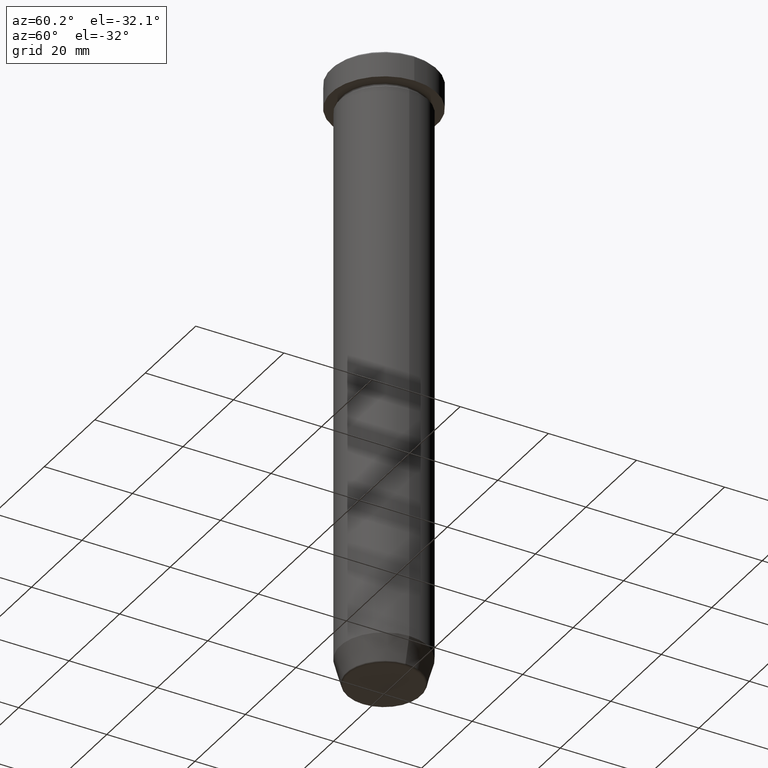
[diagram: clean part render]
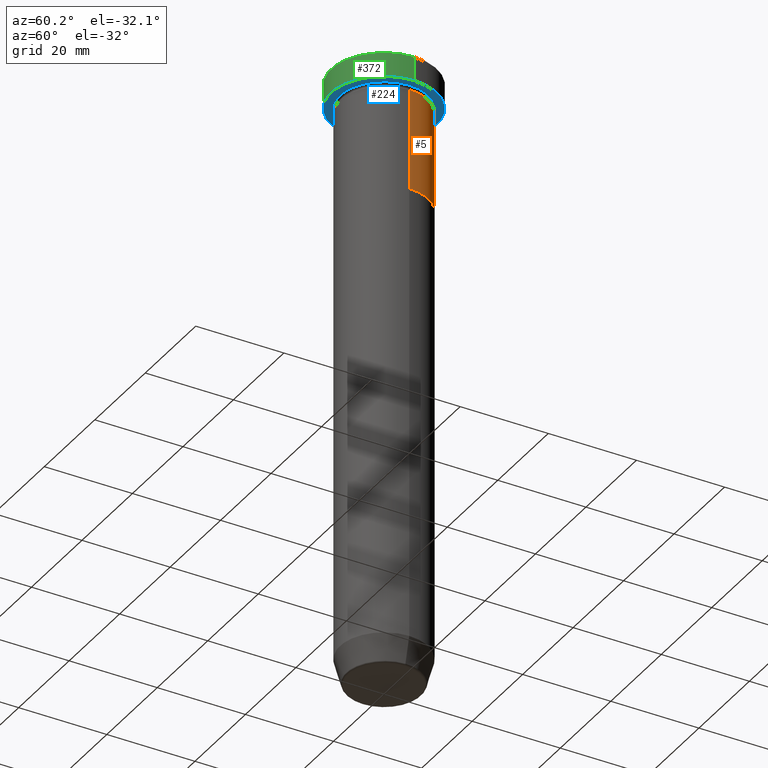
[diagram: same view with three faces highlighted in distinct colors, each labeled with its STEP entity id]
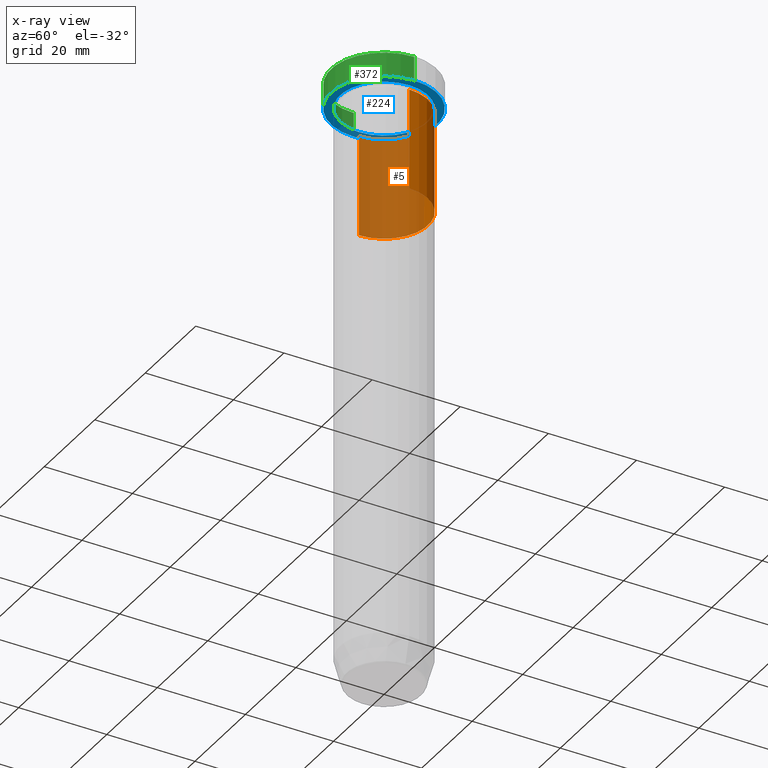
[diagram: x-ray of the same camera — body ghosted, the three highlighted faces saturated]
A machine part, auxiliary view with three faces highlighted in distinct colors.
The next image is the same camera in x-ray (body ghosted, the three faces saturated) — at least one of them is partly hidden behind the body in this view.
Their STEP definitions:

[orange] entity #5 — the highlighted cylindrical surface (partial cylindrical patch) has radius 10 mm, axis along (-0, -0, 1).
#5 = ADVANCED_FACE ( 'NONE', ( #566 ), #194, .T. ) ;
#13 = VERTEX_POINT ( 'NONE', #433 ) ;
#26 = VERTEX_POINT ( 'NONE', #547 ) ;
#64 = LINE ( 'NONE', #434, #79 ) ;
#66 = DIRECTION ( 'NONE',  ( -0.000000000000000000, -0.000000000000000000, 1.000000000000000000 ) ) ;
#67 = CARTESIAN_POINT ( 'NONE',  ( -10.00000000000000000, 1.224646799147353256E-15, -30.00000000000000000 ) ) ;
#70 = EDGE_CURVE ( 'NONE', #26, #389, #244, .T. ) ;
#79 = VECTOR ( 'NONE', #113, 1000.000000000000000 ) ;
#113 = DIRECTION ( 'NONE',  ( -0.000000000000000000, -0.000000000000000000, 1.000000000000000000 ) ) ;
#124 = ORIENTED_EDGE ( 'NONE', *, *, #70, .F. ) ;
#139 = AXIS2_PLACEMENT_3D ( 'NONE', #453, #66, #250 ) ;
#174 = EDGE_CURVE ( 'NONE', #13, #563, #186, .T. ) ;
#186 = CIRCLE ( 'NONE', #139, 10.00000000000000000 ) ;
#194 = CYLINDRICAL_SURFACE ( 'NONE', #471, 10.00000000000000000 ) ;
#196 = DIRECTION ( 'NONE',  ( 1.000000000000000000, 0.000000000000000000, 0.000000000000000000 ) ) ;
#244 = CIRCLE ( 'NONE', #287, 10.00000000000000000 ) ;
#245 = EDGE_LOOP ( 'NONE', ( #363, #406, #124, #343 ) ) ;
#250 = DIRECTION ( 'NONE',  ( 1.000000000000000000, 0.000000000000000000, 0.000000000000000000 ) ) ;
#260 = DIRECTION ( 'NONE',  ( -0.000000000000000000, -0.000000000000000000, 1.000000000000000000 ) ) ;
#287 = AXIS2_PLACEMENT_3D ( 'NONE', #430, #443, #535 ) ;
#312 = CARTESIAN_POINT ( 'NONE',  ( -10.00000000000000000, 1.224646799147353256E-15, -6.999999999999999112 ) ) ;
#343 = ORIENTED_EDGE ( 'NONE', *, *, #405, .F. ) ;
#363 = ORIENTED_EDGE ( 'NONE', *, *, #174, .T. ) ;
#382 = CARTESIAN_POINT ( 'NONE',  ( 0.000000000000000000, 0.000000000000000000, 0.000000000000000000 ) ) ;
#389 = VERTEX_POINT ( 'NONE', #312 ) ;
#399 = LINE ( 'NONE', #446, #409 ) ;
#405 = EDGE_CURVE ( 'NONE', #13, #26, #399, .T. ) ;
#406 = ORIENTED_EDGE ( 'NONE', *, *, #436, .T. ) ;
#409 = VECTOR ( 'NONE', #260, 1000.000000000000000 ) ;
#430 = CARTESIAN_POINT ( 'NONE',  ( 0.000000000000000000, 0.000000000000000000, -6.999999999999999112 ) ) ;
#433 = CARTESIAN_POINT ( 'NONE',  ( 10.00000000000000000, 0.000000000000000000, -30.00000000000000000 ) ) ;
#434 = CARTESIAN_POINT ( 'NONE',  ( -10.00000000000000000, 1.224646799147353256E-15, 0.000000000000000000 ) ) ;
#436 = EDGE_CURVE ( 'NONE', #563, #389, #64, .T. ) ;
#443 = DIRECTION ( 'NONE',  ( -0.000000000000000000, -0.000000000000000000, 1.000000000000000000 ) ) ;
#446 = CARTESIAN_POINT ( 'NONE',  ( 10.00000000000000000, 0.000000000000000000, 0.000000000000000000 ) ) ;
#453 = CARTESIAN_POINT ( 'NONE',  ( 0.000000000000000000, 0.000000000000000000, -30.00000000000000000 ) ) ;
#471 = AXIS2_PLACEMENT_3D ( 'NONE', #382, #525, #196 ) ;
#525 = DIRECTION ( 'NONE',  ( -0.000000000000000000, -0.000000000000000000, 1.000000000000000000 ) ) ;
#535 = DIRECTION ( 'NONE',  ( 1.000000000000000000, 0.000000000000000000, 0.000000000000000000 ) ) ;
#547 = CARTESIAN_POINT ( 'NONE',  ( 10.00000000000000000, 0.000000000000000000, -6.999999999999999112 ) ) ;
#563 = VERTEX_POINT ( 'NONE', #67 ) ;
#566 = FACE_OUTER_BOUND ( 'NONE', #245, .T. ) ;

[blue] entity #224 — the highlighted planar face has unit normal (0, 0, -1).
#18 = ORIENTED_EDGE ( 'NONE', *, *, #519, .T. ) ;
#50 = EDGE_CURVE ( 'NONE', #320, #52, #177, .T. ) ;
#52 = VERTEX_POINT ( 'NONE', #254 ) ;
#76 = PLANE ( 'NONE',  #438 ) ;
#142 = VERTEX_POINT ( 'NONE', #598 ) ;
#163 = FACE_BOUND ( 'NONE', #444, .T. ) ;
#177 = CIRCLE ( 'NONE', #401, 10.00000000000000000 ) ;
#184 = DIRECTION ( 'NONE',  ( 1.000000000000000000, 0.000000000000000000, 0.000000000000000000 ) ) ;
#220 = CARTESIAN_POINT ( 'NONE',  ( 0.000000000000000000, 12.00000000000000000, -6.000000000000000000 ) ) ;
#221 = EDGE_LOOP ( 'NONE', ( #422, #476 ) ) ;
#224 = ADVANCED_FACE ( 'NONE', ( #163, #344 ), #76, .T. ) ;
#234 = CARTESIAN_POINT ( 'NONE',  ( 0.000000000000000000, 0.000000000000000000, -5.999999999999999112 ) ) ;
#237 = CARTESIAN_POINT ( 'NONE',  ( 0.000000000000000000, 0.000000000000000000, -6.000000000000000000 ) ) ;
#253 = AXIS2_PLACEMENT_3D ( 'NONE', #237, #419, #554 ) ;
#254 = CARTESIAN_POINT ( 'NONE',  ( -10.00000000000000000, 0.000000000000000000, -6.000000000000000000 ) ) ;
#258 = DIRECTION ( 'NONE',  ( -1.000000000000000000, 0.000000000000000000, -0.000000000000000000 ) ) ;
#264 = DIRECTION ( 'NONE',  ( -0.000000000000000000, -0.000000000000000000, 1.000000000000000000 ) ) ;
#271 = CARTESIAN_POINT ( 'NONE',  ( 12.00000000000000000, 0.000000000000000000, -5.999999999999999112 ) ) ;
#272 = CARTESIAN_POINT ( 'NONE',  ( 0.000000000000000000, 0.000000000000000000, -5.999999999999999112 ) ) ;
#275 = ORIENTED_EDGE ( 'NONE', *, *, #50, .T. ) ;
#301 = DIRECTION ( 'NONE',  ( 0.000000000000000000, 0.000000000000000000, -1.000000000000000000 ) ) ;
#302 = CIRCLE ( 'NONE', #597, 12.00000000000000000 ) ;
#320 = VERTEX_POINT ( 'NONE', #478 ) ;
#342 = CIRCLE ( 'NONE', #377, 12.00000000000000000 ) ;
#344 = FACE_OUTER_BOUND ( 'NONE', #221, .T. ) ;
#369 = DIRECTION ( 'NONE',  ( -0.000000000000000000, -0.000000000000000000, 1.000000000000000000 ) ) ;
#377 = AXIS2_PLACEMENT_3D ( 'NONE', #234, #467, #485 ) ;
#401 = AXIS2_PLACEMENT_3D ( 'NONE', #421, #264, #435 ) ;
#419 = DIRECTION ( 'NONE',  ( -0.000000000000000000, -0.000000000000000000, 1.000000000000000000 ) ) ;
#421 = CARTESIAN_POINT ( 'NONE',  ( 0.000000000000000000, 0.000000000000000000, -6.000000000000000000 ) ) ;
#422 = ORIENTED_EDGE ( 'NONE', *, *, #451, .F. ) ;
#435 = DIRECTION ( 'NONE',  ( -1.000000000000000000, 0.000000000000000000, 0.000000000000000000 ) ) ;
#438 = AXIS2_PLACEMENT_3D ( 'NONE', #220, #301, #258 ) ;
#444 = EDGE_LOOP ( 'NONE', ( #18, #275 ) ) ;
#451 = EDGE_CURVE ( 'NONE', #506, #142, #342, .T. ) ;
#467 = DIRECTION ( 'NONE',  ( -0.000000000000000000, -0.000000000000000000, 1.000000000000000000 ) ) ;
#476 = ORIENTED_EDGE ( 'NONE', *, *, #515, .F. ) ;
#478 = CARTESIAN_POINT ( 'NONE',  ( 10.00000000000000000, 1.224646799147353256E-15, -6.000000000000000000 ) ) ;
#485 = DIRECTION ( 'NONE',  ( 1.000000000000000000, 0.000000000000000000, 0.000000000000000000 ) ) ;
#506 = VERTEX_POINT ( 'NONE', #271 ) ;
#515 = EDGE_CURVE ( 'NONE', #142, #506, #302, .T. ) ;
#519 = EDGE_CURVE ( 'NONE', #52, #320, #528, .T. ) ;
#528 = CIRCLE ( 'NONE', #253, 10.00000000000000000 ) ;
#554 = DIRECTION ( 'NONE',  ( -1.000000000000000000, 0.000000000000000000, 0.000000000000000000 ) ) ;
#597 = AXIS2_PLACEMENT_3D ( 'NONE', #272, #369, #184 ) ;
#598 = CARTESIAN_POINT ( 'NONE',  ( -12.00000000000000000, 1.469576158976823947E-15, -5.999999999999999112 ) ) ;

[green] entity #372 — the highlighted cylindrical surface (partial cylindrical patch) has radius 12 mm, axis along (-0, -0, 1).
#2 = FACE_OUTER_BOUND ( 'NONE', #188, .T. ) ;
#20 = CARTESIAN_POINT ( 'NONE',  ( -12.00000000000000000, 1.469576158976823947E-15, -0.5000000000000056621 ) ) ;
#31 = DIRECTION ( 'NONE',  ( 1.000000000000000000, 0.000000000000000000, 0.000000000000000000 ) ) ;
#38 = DIRECTION ( 'NONE',  ( 0.000000000000000000, 0.000000000000000000, -1.000000000000000000 ) ) ;
#58 = VECTOR ( 'NONE', #315, 1000.000000000000000 ) ;
#81 = CARTESIAN_POINT ( 'NONE',  ( 0.000000000000000000, 0.000000000000000000, 0.000000000000000000 ) ) ;
#86 = ORIENTED_EDGE ( 'NONE', *, *, #397, .T. ) ;
#91 = CIRCLE ( 'NONE', #155, 12.00000000000000000 ) ;
#93 = LINE ( 'NONE', #97, #58 ) ;
#97 = CARTESIAN_POINT ( 'NONE',  ( 12.00000000000000000, 0.000000000000000000, 0.000000000000000000 ) ) ;
#128 = EDGE_CURVE ( 'NONE', #142, #458, #591, .T. ) ;
#142 = VERTEX_POINT ( 'NONE', #598 ) ;
#155 = AXIS2_PLACEMENT_3D ( 'NONE', #488, #38, #31 ) ;
#184 = DIRECTION ( 'NONE',  ( 1.000000000000000000, 0.000000000000000000, 0.000000000000000000 ) ) ;
#185 = ORIENTED_EDGE ( 'NONE', *, *, #327, .T. ) ;
#188 = EDGE_LOOP ( 'NONE', ( #318, #325, #185, #86 ) ) ;
#223 = CARTESIAN_POINT ( 'NONE',  ( 12.00000000000000000, 0.000000000000000000, -0.5000000000000056621 ) ) ;
#271 = CARTESIAN_POINT ( 'NONE',  ( 12.00000000000000000, 0.000000000000000000, -5.999999999999999112 ) ) ;
#272 = CARTESIAN_POINT ( 'NONE',  ( 0.000000000000000000, 0.000000000000000000, -5.999999999999999112 ) ) ;
#298 = DIRECTION ( 'NONE',  ( -0.000000000000000000, -0.000000000000000000, 1.000000000000000000 ) ) ;
#302 = CIRCLE ( 'NONE', #597, 12.00000000000000000 ) ;
#315 = DIRECTION ( 'NONE',  ( -0.000000000000000000, -0.000000000000000000, 1.000000000000000000 ) ) ;
#318 = ORIENTED_EDGE ( 'NONE', *, *, #128, .F. ) ;
#325 = ORIENTED_EDGE ( 'NONE', *, *, #515, .T. ) ;
#327 = EDGE_CURVE ( 'NONE', #506, #594, #93, .T. ) ;
#351 = CARTESIAN_POINT ( 'NONE',  ( -12.00000000000000000, 1.469576158976823947E-15, 0.000000000000000000 ) ) ;
#369 = DIRECTION ( 'NONE',  ( -0.000000000000000000, -0.000000000000000000, 1.000000000000000000 ) ) ;
#372 = ADVANCED_FACE ( 'NONE', ( #2 ), #459, .T. ) ;
#374 = DIRECTION ( 'NONE',  ( -0.000000000000000000, -0.000000000000000000, 1.000000000000000000 ) ) ;
#397 = EDGE_CURVE ( 'NONE', #594, #458, #91, .T. ) ;
#450 = AXIS2_PLACEMENT_3D ( 'NONE', #81, #374, #557 ) ;
#458 = VERTEX_POINT ( 'NONE', #20 ) ;
#459 = CYLINDRICAL_SURFACE ( 'NONE', #450, 12.00000000000000000 ) ;
#488 = CARTESIAN_POINT ( 'NONE',  ( 0.000000000000000000, 0.000000000000000000, -0.5000000000000056621 ) ) ;
#506 = VERTEX_POINT ( 'NONE', #271 ) ;
#515 = EDGE_CURVE ( 'NONE', #142, #506, #302, .T. ) ;
#557 = DIRECTION ( 'NONE',  ( 1.000000000000000000, 0.000000000000000000, 0.000000000000000000 ) ) ;
#578 = VECTOR ( 'NONE', #298, 1000.000000000000000 ) ;
#591 = LINE ( 'NONE', #351, #578 ) ;
#594 = VERTEX_POINT ( 'NONE', #223 ) ;
#597 = AXIS2_PLACEMENT_3D ( 'NONE', #272, #369, #184 ) ;
#598 = CARTESIAN_POINT ( 'NONE',  ( -12.00000000000000000, 1.469576158976823947E-15, -5.999999999999999112 ) ) ;